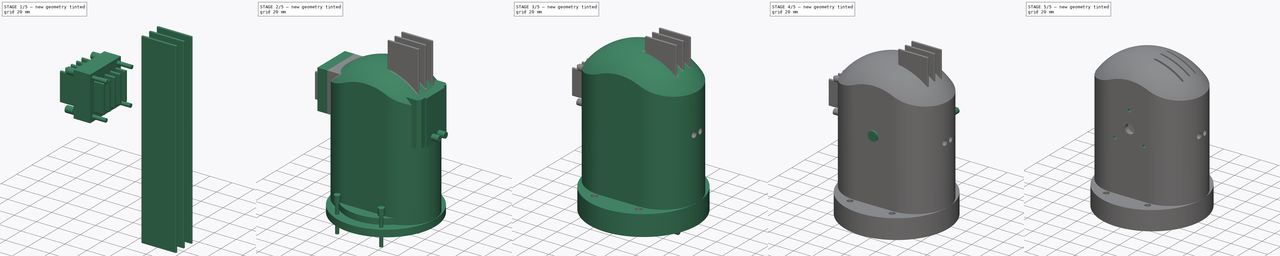
[diagram: build sequence overview — one tinted view per stage of 5, left to right]
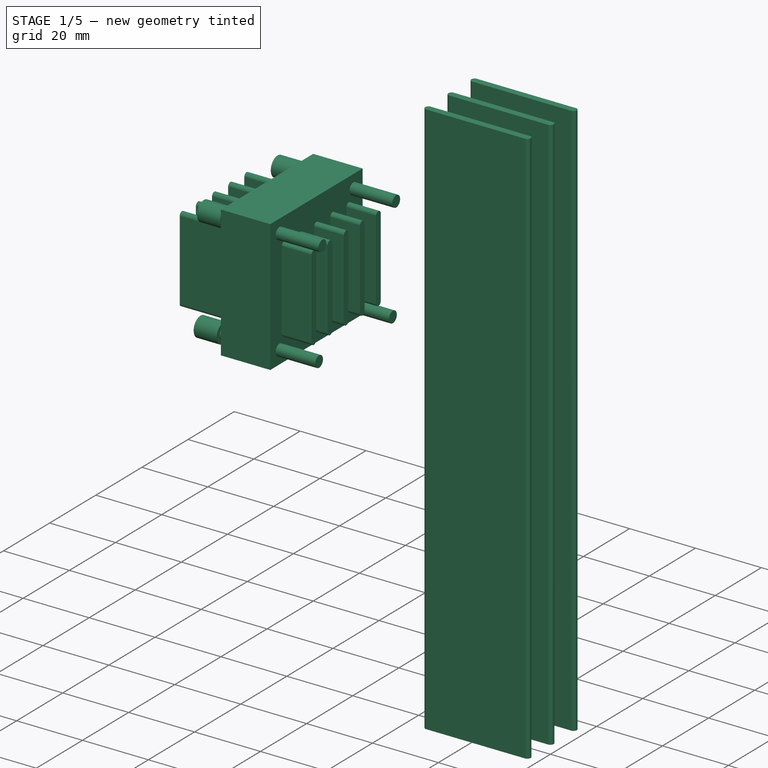
[diagram: stage 1 of 5 — iso view after this stage's code; geometry added in this stage tinted green]
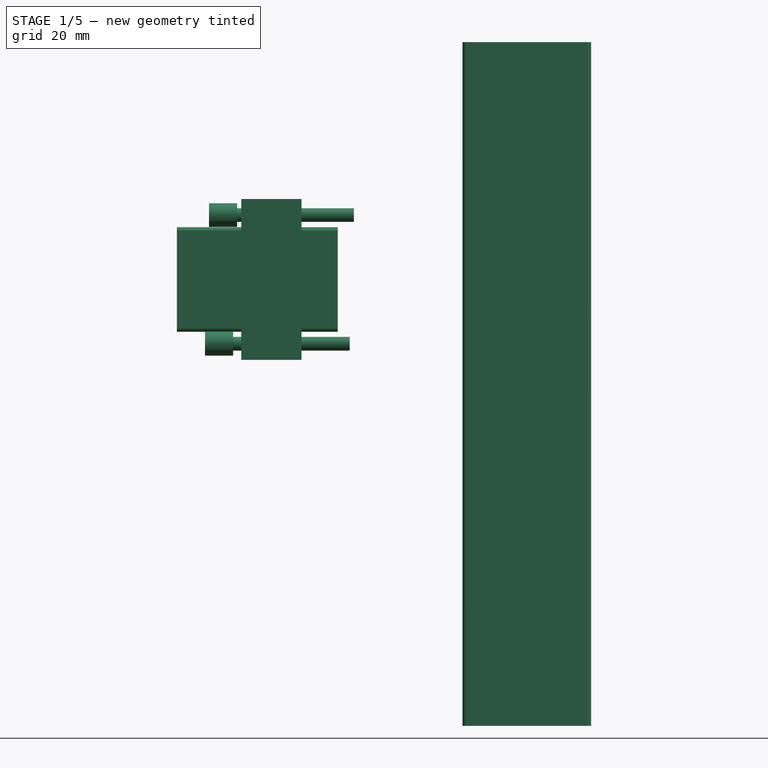
[diagram: stage 1 of 5 — front view after this stage's code; geometry added in this stage tinted green]
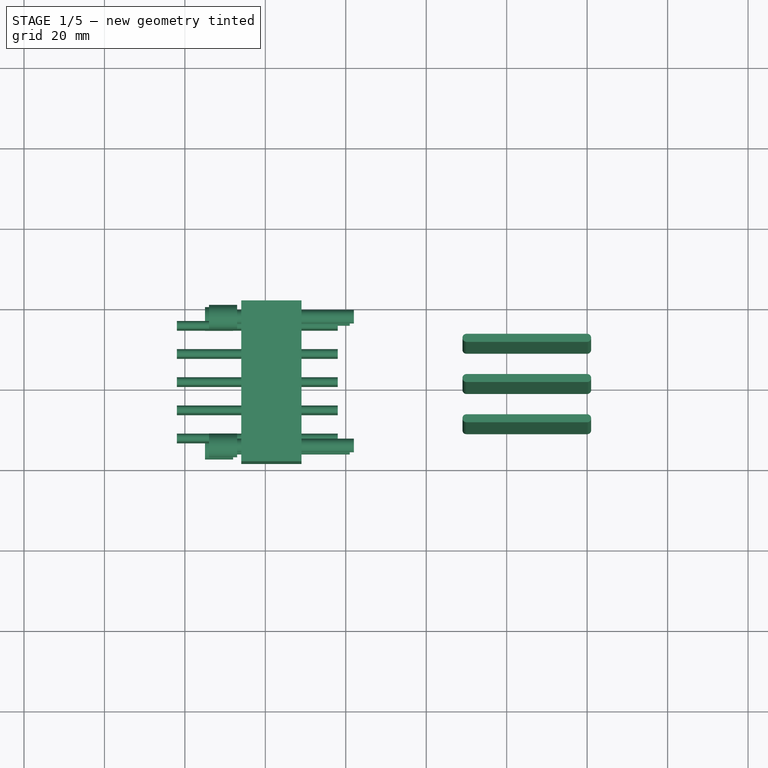
[diagram: stage 1 of 5 — top view after this stage's code; geometry added in this stage tinted green]
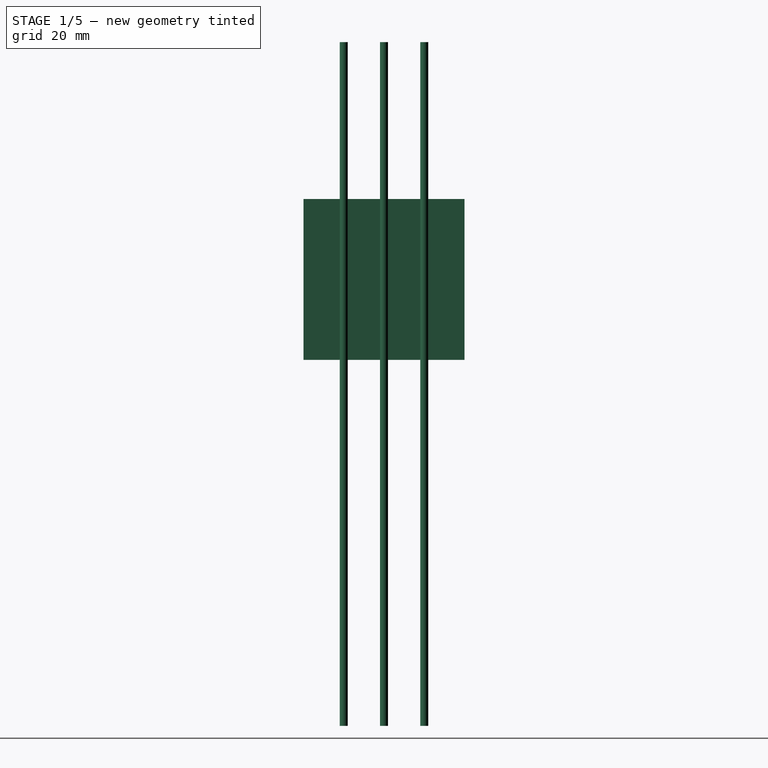
[diagram: stage 1 of 5 — right view after this stage's code; geometry added in this stage tinted green]
FCSTD DOCUMENT  (FreeCAD 0.16R6703 (Git))
Label: Art3Body
License: All rights reserved
LicenseURL: http://en.wikipedia.org/wiki/All_rights_reserved
objects: Part::FeaturePython×42, Part::MultiFuse×16, Sketcher::SketchObject×14, PartDesign::Pad×11, Part::Cylinder×9, Part::Cut×9, Part::Box×4, PartDesign::Revolution×3, Part::Prism×1, App::DocumentObjectGroup×1
note: 123 computed .brp shape members not serialized (recipe doc carries the construction recipe); baked Part::Feature solids carry a one-line shape summary decoded from their .brp

FEATURE [Part::Cylinder] Cylinder  label="M3BoltHead"
  Angle = 360
  Height = 7
  Radius = 2.95
FEATURE [Part::Cylinder] Cylinder001  label="M3BoltBody"
  Angle = 360
  Height = 30
  Placement = pos=(0,0,6) rot=(0,0,1;0rad)
  Radius = 1.7
FEATURE [Part::MultiFuse] Fusion  label="M3Bolt"
  Shapes = -> [Cylinder001,Cylinder]
FEATURE [Sketcher::SketchObject] Sketch
  Placement = pos=(10,0,80) rot=(0.707107,0.707107,0;3.14159rad)
  sketch-geometry (4):
    g0: ArcOfCircle CenterX=0 CenterY=30 CenterZ=0 NormalX=0 NormalY=0 NormalZ=1 Radius=1 StartAngle=0 EndAngle=3.14159
    g1: ArcOfCircle CenterX=0 CenterY=0 CenterZ=0 NormalX=0 NormalY=0 NormalZ=1 Radius=1 StartAngle=3.14159 EndAngle=6.28319
    g2: LineSegment StartX=-1 StartY=30 StartZ=0 EndX=-1 EndY=0 EndZ=0
    g3: LineSegment StartX=1 StartY=30 StartZ=0 EndX=1 EndY=0 EndZ=0
  constraints (9):
    c: Tangent(g0,g3) = 1.5708
    c: Tangent(g0,g2) = -1.5708
    c: Tangent(g2,g1) = -1.5708
    c: Tangent(g3,g1) = 1.5708
    c: Vertical(g2)
    c: Equal(g0,g1)
    c: DistanceY(g2,g2) = 30
    c: Radius(g0) = 1
    c: Coincident(g1,g-1)
FEATURE [PartDesign::Pad] Pad
  Length = 170
  Length2 = 100
  Midplane = true
  Placement = pos=(10,0,80) rot=(0.707107,0.707107,0;3.14159rad)
  Sketch = -> Sketch
  Type = 0
FEATURE [Part::FeaturePython] Clone  label="Clone of Pad"  # Draft clone (typed FeaturePython)
  Objects = -> [Pad]
  Placement = pos=(10,10,80) rot=(0.707107,0.707107,0;3.14159rad)
  Scale = (1,1,1)
FEATURE [Part::FeaturePython] Clone435  label="Clone of Pad001"  # Draft clone (typed FeaturePython)
  Objects = -> [Pad]
  Placement = pos=(10,-10,80) rot=(0.707107,0.707107,0;3.14159rad)
  Scale = (1,1,1)
FEATURE [Part::MultiFuse] Fusion167
  Shapes = -> [Pad,Clone435,Clone]
FEATURE [Part::Box] Box  label="Cube"
  Height = 40
  Length = 15
  Placement = pos=(-46,-20,86) rot=(0,0,1;0rad)
  Width = 40
FEATURE [Sketcher::SketchObject] Sketch082
  Placement = pos=(-42,0,118) rot=(0.57735,0.57735,-0.57735;4.18879rad)
  sketch-geometry (4):
    g0: ArcOfCircle CenterX=-9e-12 CenterY=24 CenterZ=0 NormalX=0 NormalY=0 NormalZ=1 Radius=1 StartAngle=0 EndAngle=3.14159
    g1: ArcOfCircle CenterX=0 CenterY=0 CenterZ=0 NormalX=0 NormalY=0 NormalZ=1 Radius=1 StartAngle=3.14159 EndAngle=6.28319
    g2: LineSegment StartX=-1 StartY=24 StartZ=0 EndX=-1 EndY=0 EndZ=0
    g3: LineSegment StartX=1 StartY=24 StartZ=0 EndX=1 EndY=0 EndZ=0
  constraints (9):
    c: Tangent(g0,g3) = 1.5708
    c: Tangent(g0,g2) = -1.5708
    c: Tangent(g2,g1) = -1.5708
    c: Tangent(g3,g1) = 1.5708
    c: Vertical(g2)
    c: Equal(g0,g1)
    c: DistanceY(g2,g2) = 24
    c: Radius(g0) = 1
    c: Coincident(g1,g-1)
FEATURE [PartDesign::Pad] Pad050
  Length = 40
  Length2 = 100
  Midplane = true
  Placement = pos=(-42,0,118) rot=(0.57735,0.57735,-0.57735;4.18879rad)
  Sketch = -> Sketch082
  Type = 0
FEATURE [Part::FeaturePython] Clone436  label="Clone of Pad050"  # Draft clone (typed FeaturePython)
  Objects = -> [Pad050]
  Placement = pos=(-42,7,118) rot=(0.57735,0.57735,-0.57735;4.18879rad)
  Scale = (1,1,1)
FEATURE [Part::FeaturePython] Clone437  label="Clone of Pad051"  # Draft clone (typed FeaturePython)
  Objects = -> [Pad050]
  Placement = pos=(-42,-7,118) rot=(0.57735,0.57735,-0.57735;4.18879rad)
  Scale = (1,1,1)
FEATURE [Part::FeaturePython] Clone438  label="Clone of Pad052"  # Draft clone (typed FeaturePython)
  Objects = -> [Pad050]
  Placement = pos=(-42,14,118) rot=(0.57735,0.57735,-0.57735;4.18879rad)
  Scale = (1,1,1)
FEATURE [Part::FeaturePython] Clone439  label="Clone of Pad053"  # Draft clone (typed FeaturePython)
  Objects = -> [Pad050]
  Placement = pos=(-42,-14,118) rot=(0.57735,0.57735,-0.57735;4.18879rad)
  Scale = (1,1,1)
FEATURE [Part::FeaturePython] Clone440  label="Clone of M3Bolt"  # Draft clone (typed FeaturePython)
  Objects = -> [Fusion]
  Placement = pos=(-55,-16,90) rot=(0,1,0;1.5708rad)
  Scale = (1,1,1)
FEATURE [Part::FeaturePython] Clone441  label="Clone of M3Bolt120"  # Draft clone (typed FeaturePython)
  Objects = -> [Fusion]
  Placement = pos=(-54,-16,122) rot=(0,1,0;1.5708rad)
  Scale = (1,1,1)
FEATURE [Part::FeaturePython] Clone442  label="Clone of M3Bolt121"  # Draft clone (typed FeaturePython)
  Objects = -> [Fusion]
  Placement = pos=(-55,16,90) rot=(0,1,0;1.5708rad)
  Scale = (1,1,1)
FEATURE [Part::FeaturePython] Clone443  label="Clone of M3Bolt122"  # Draft clone (typed FeaturePython)
  Objects = -> [Fusion]
  Placement = pos=(-54,16,122) rot=(0,1,0;1.5708rad)
  Scale = (1,1,1)
FEATURE [Part::MultiFuse] Fusion172
  Shapes = -> [Box,Clone439,Clone440,Clone436,Clone442,Clone443,Clone437,Clone438,Clone441,Pad050]
FEATURE [Part::MultiFuse] Fusion173
  Shapes = -> [Fusion172,Fusion167]
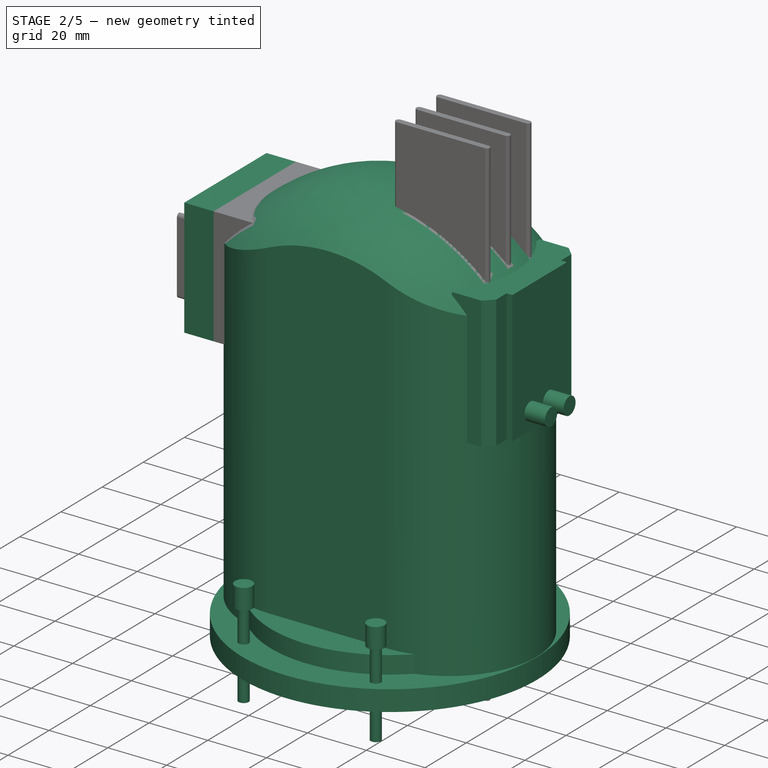
[diagram: stage 2 of 5 — iso view after this stage's code; geometry added in this stage tinted green]
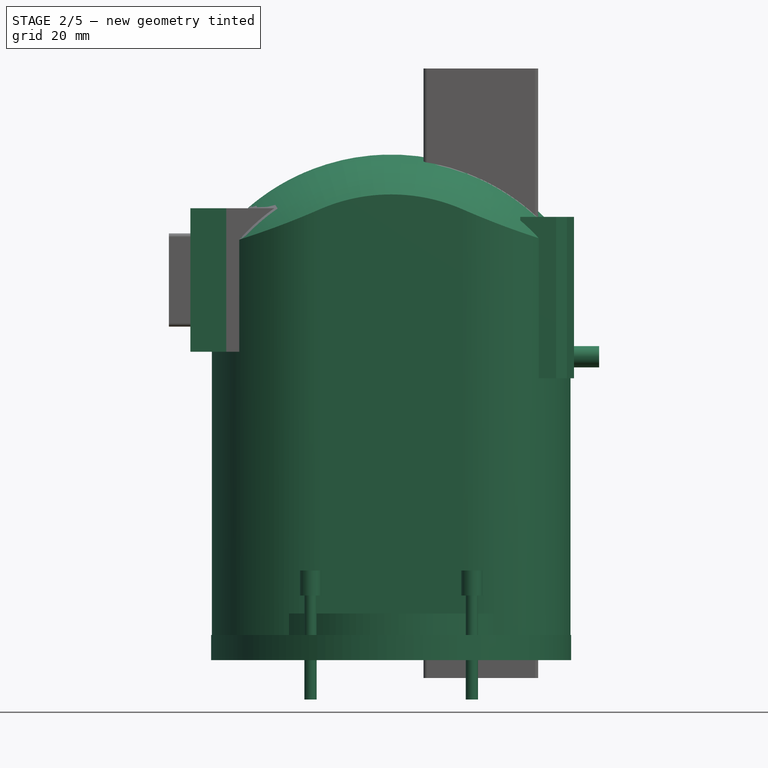
[diagram: stage 2 of 5 — front view after this stage's code; geometry added in this stage tinted green]
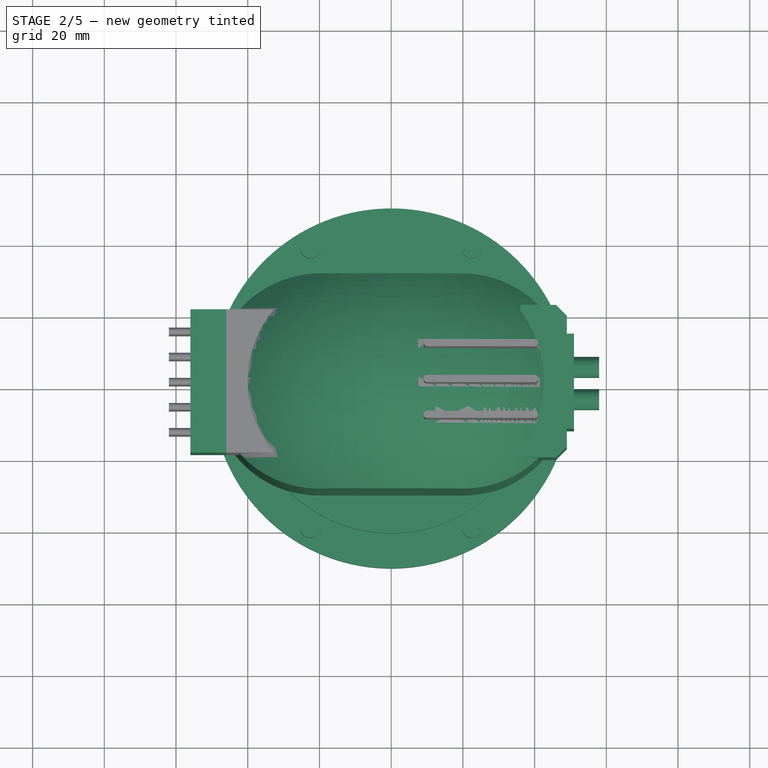
[diagram: stage 2 of 5 — top view after this stage's code; geometry added in this stage tinted green]
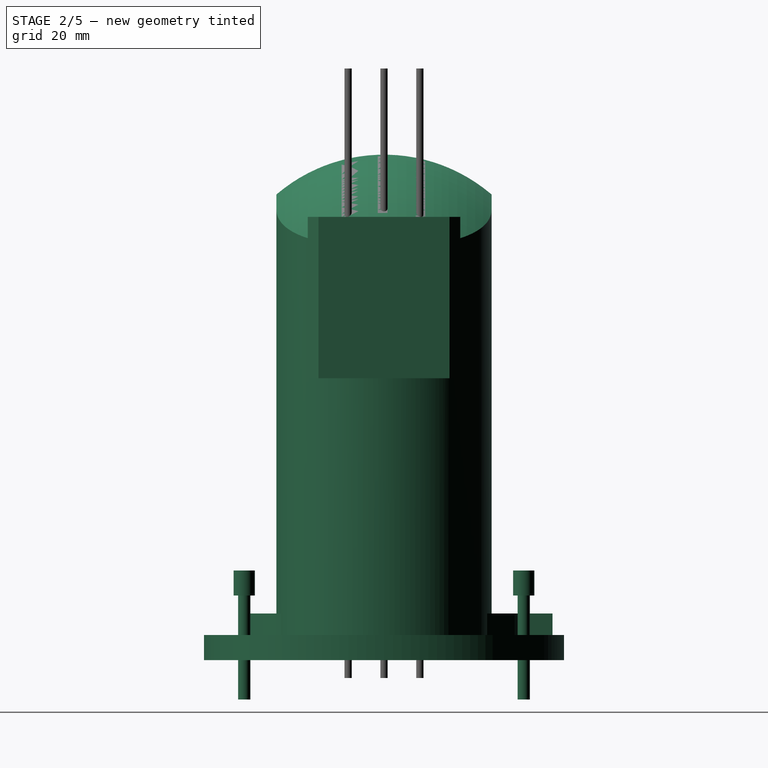
[diagram: stage 2 of 5 — right view after this stage's code; geometry added in this stage tinted green]
FEATURE [Part::Cylinder] Cylinder1017  label="Cylinder1065"
  Angle = 360
  Height = 7
  Radius = 50.2
FEATURE [Sketcher::SketchObject] Sketch038
  sketch-geometry (4):
    g0: ArcOfCircle CenterX=-20 CenterY=0 CenterZ=0 NormalX=0 NormalY=0 NormalZ=1 Radius=30 StartAngle=1.5708 EndAngle=4.71239
    g1: ArcOfCircle CenterX=20 CenterY=0 CenterZ=0 NormalX=0 NormalY=0 NormalZ=1 Radius=30 StartAngle=4.71239 EndAngle=7.85398
    g2: LineSegment StartX=-20 StartY=-30 StartZ=0 EndX=20 EndY=-30 EndZ=0
    g3: LineSegment StartX=-20 StartY=30 StartZ=0 EndX=20 EndY=30 EndZ=0
  constraints (10):
    c: Tangent(g0,g3) = 1.5708
    c: Tangent(g0,g2) = -1.5708
    c: Tangent(g2,g1) = -1.5708
    c: Tangent(g3,g1) = 1.5708
    c: Horizontal(g2)
    c: Equal(g0,g1)
    c: Radius(g0) = 30
    c: DistanceX(g2) = 40
    c: PointOnObject(g0,g-1)
    c: DistanceX(g-1,g0) = -20
FEATURE [Sketcher::SketchObject] Sketch039
  Placement = pos=(0,0,73) rot=(0,0,1;0rad)
  sketch-geometry (6):
    g0: ArcOfCircle CenterX=-15 CenterY=0 CenterZ=0 NormalX=0 NormalY=0 NormalZ=1 Radius=46 StartAngle=1.5708 EndAngle=4.71239
    g1: LineSegment StartX=-15.0001 StartY=46 StartZ=0 EndX=-15.0001 EndY=51 EndZ=0
    g2: LineSegment StartX=-15.0001 StartY=51 StartZ=0 EndX=-115 EndY=51 EndZ=0
    g3: LineSegment StartX=-115 StartY=51 StartZ=0 EndX=-115 EndY=-51 EndZ=0
    g4: LineSegment StartX=-115 StartY=-51 StartZ=0 EndX=-15.0001 EndY=-51 EndZ=0
    g5: LineSegment StartX=-15.0001 StartY=-51 StartZ=0 EndX=-15.0001 EndY=-46 EndZ=0
  constraints (19):
    c: PointOnObject(g0,g-1)
    c: Radius(g0) = 46
    c: Coincident(g1,g0)
    c: Vertical(g1)
    c: Coincident(g1,g2)
    c: Horizontal(g2)
    c: Coincident(g2,g3)
    c: Vertical(g3)
    c: Coincident(g3,g4)
    c: Horizontal(g4)
    c: Coincident(g4,g5)
    c: Coincident(g0,g5)
    c: DistanceX(g-1,g0) = -15
    c: DistanceY(g0,g0) = -92
    c: Vertical(g5)
    c: Equal(g5,g1)
    c: Equal(g2,g4)
    c: DistanceY(g1) = 5
    c: DistanceX(g4) = 100
FEATURE [PartDesign::Revolution] Revolution006
  Angle = 180
  Axis = (0,1,0)
  Base = (0,0,73)
  Placement = pos=(0,0,73) rot=(0,0,1;0rad)
  ReferenceAxis = -> Sketch039 [V_Axis]
  Sketch = -> Sketch039
FEATURE [PartDesign::Pad] Pad028
  Length = 139
  Length2 = 100
  Sketch = -> Sketch038
  Type = 0
FEATURE [Part::FeaturePython] Clone213  label="Clone of M3Bolt069"  # Draft clone (typed FeaturePython)
  Objects = -> [Fusion]
  Placement = pos=(-22.5,38.9711,25) rot=(-0.258819,0.965926,0;3.14159rad)
  Scale = (1,1,1)
FEATURE [Sketcher::SketchObject] Sketch040
  Placement = pos=(0,0,7) rot=(0,0,1;0rad)
  sketch-geometry (4):
    g0: ArcOfCircle CenterX=0 CenterY=0 CenterZ=0 NormalX=0 NormalY=0 NormalZ=1 Radius=40.5 StartAngle=1.69457 EndAngle=7.73021
    g1: LineSegment StartX=5 StartY=40.1902 StartZ=0 EndX=5 EndY=47 EndZ=0
    g2: LineSegment StartX=5 StartY=47 StartZ=0 EndX=-5 EndY=47 EndZ=0
    g3: LineSegment StartX=-5 StartY=47 StartZ=0 EndX=-5 EndY=40.1902 EndZ=0
  constraints (12):
    c: Coincident(g0,g-1)
    c: Coincident(g1,g2)
    c: Coincident(g2,g3)
    c: Horizontal(g2)
    c: Vertical(g1)
    c: Vertical(g3)
    c: Radius(g0) = 40.5
    c: DistanceY(g-1,g1) = 47
    c: DistanceX(g2) = -10
    c: DistanceX(g-1,g2) = -5
    c: Coincident(g0,g3)
    c: Coincident(g1,g0)
FEATURE [PartDesign::Pad] Pad029
  Length = 6
  Length2 = 100
  Placement = pos=(0,0,7) rot=(0,0,1;0rad)
  Sketch = -> Sketch040
  Type = 0
FEATURE [Part::FeaturePython] Clone214  label="Clone of M3Bolt070"  # Draft clone (typed FeaturePython)
  Objects = -> [Fusion]
  Placement = pos=(22.5,-38.9711,25) rot=(1,0,0;3.14159rad)
  Scale = (1,1,1)
FEATURE [Part::FeaturePython] Clone215  label="Clone of M3Bolt071"  # Draft clone (typed FeaturePython)
  Objects = -> [Fusion]
  Placement = pos=(22.5,38.9711,25) rot=(0.5,0.866025,0;3.14159rad)
  Scale = (1,1,1)
FEATURE [Part::FeaturePython] Clone216  label="Clone of M3Bolt072"  # Draft clone (typed FeaturePython)
  Objects = -> [Fusion]
  Placement = pos=(-22.5,-38.9711,25) rot=(0.866025,-0.5,0;3.14159rad)
  Scale = (1,1,1)
FEATURE [Sketcher::SketchObject] Sketch041
  Placement = pos=(46,-21.25,78.6) rot=(0,0,1;0rad)
  sketch-geometry (6):
    g0: LineSegment StartX=0 StartY=0 StartZ=0 EndX=3 EndY=3 EndZ=0
    g1: LineSegment StartX=3 StartY=3 StartZ=0 EndX=3 EndY=39.5 EndZ=0
    g2: LineSegment StartX=3 StartY=39.5 StartZ=0 EndX=0 EndY=42.5 EndZ=0
    g3: LineSegment StartX=0 StartY=42.5 StartZ=0 EndX=-10 EndY=42.5 EndZ=0
    g4: LineSegment StartX=-10 StartY=42.5 StartZ=0 EndX=-10 EndY=0 EndZ=0
    g5: LineSegment StartX=-10 StartY=0 StartZ=0 EndX=0 EndY=0 EndZ=0
  constraints (17):
    c: Coincident(g-1,g0)
    c: Coincident(g0,g1)
    c: Vertical(g1)
    c: Coincident(g1,g2)
    c: PointOnObject(g2,g-2)
    c: Coincident(g2,g3)
    c: Horizontal(g3)
    c: Coincident(g3,g4)
    c: PointOnObject(g4,g-1)
    c: Vertical(g4)
    c: Coincident(g4,g5)
    c: Coincident(g5,g0)
    c: Angle(g-1,g0) = 0.785398
    c: Angle(g2,g-1) = 0.785398
    c: DistanceY(g1) = 36.5
    c: DistanceX(g-1,g0) = 3
    c: DistanceX(g5) = 10
FEATURE [PartDesign::Pad] Pad030
  Length = 45
  Length2 = 100
  Placement = pos=(46,-21.25,78.6) rot=(0,0,1;0rad)
  Sketch = -> Sketch041
  Type = 0
FEATURE [Part::FeaturePython] Clone217  label="Clone of M3Bolt073"  # Draft clone (typed FeaturePython)
  Objects = -> [Fusion]
  Placement = pos=(58,4.5,84.6) rot=(0,-1,0;1.5708rad)
  Scale = (1,1,1)
FEATURE [Part::FeaturePython] Clone218  label="Clone of M3Bolt074"  # Draft clone (typed FeaturePython)
  Objects = -> [Fusion]
  Placement = pos=(58,-4.5,84.6) rot=(0,-1,0;1.5708rad)
  Scale = (1,1,1)
FEATURE [Part::Box] Box252  label="Cube016"
  Height = 45
  Length = 3
  Placement = pos=(48,-13.25,78.6) rot=(0,0,1;0rad)
  Width = 26.5
FEATURE [Part::Cut] Cut062
  Base = -> Pad028
  Placement = pos=(0,0,7) rot=(0,0,1;0rad)
  Tool = -> Revolution006
FEATURE [Part::MultiFuse] Fusion078
  Shapes = -> [Cylinder1017,Pad029,Cut062]
FEATURE [Part::MultiFuse] Fusion080
  Shapes = -> [Clone218,Clone217,Pad030]
FEATURE [App::DocumentObjectGroup] Group  label="Master"
  Group = -> [Fusion,Pad002,Prism,Cylinder1003,Cut020,Pad026,Fusion158,Pad048]
FEATURE [Part::MultiFuse] Fusion163
  Shapes = -> [Clone216,Clone213,Clone214,Clone215]
FEATURE [Part::Box] Box253  label="Cube017"
  Height = 40
  Length = 10
  Placement = pos=(-56,-20,86) rot=(0,0,1;0rad)
  Width = 40
FEATURE [Part::MultiFuse] Fusion168
  Shapes = -> [Box252,Box253]
FEATURE [Part::MultiFuse] Fusion169
  Shapes = -> [Fusion163,Fusion080]
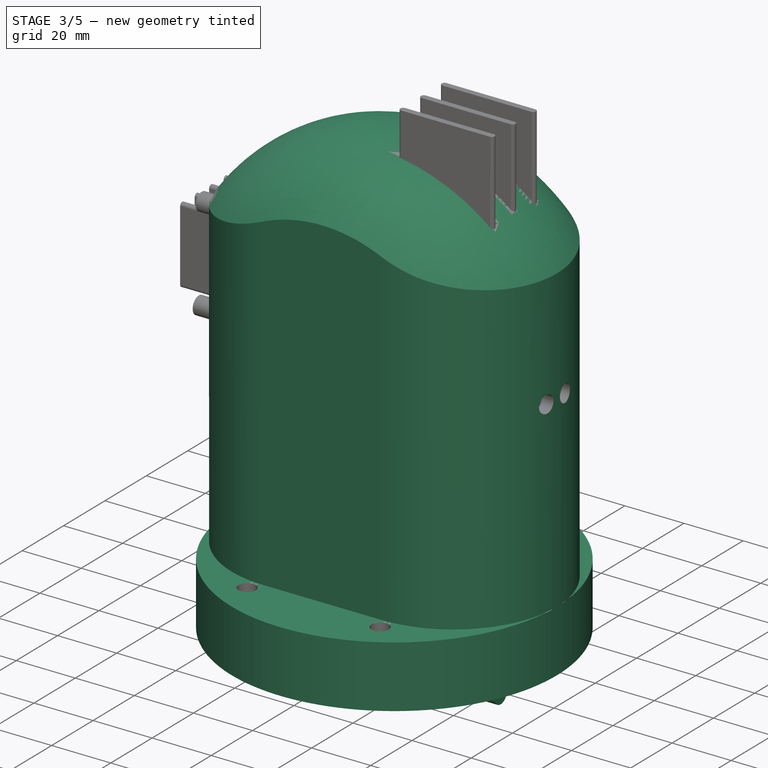
[diagram: stage 3 of 5 — iso view after this stage's code; geometry added in this stage tinted green]
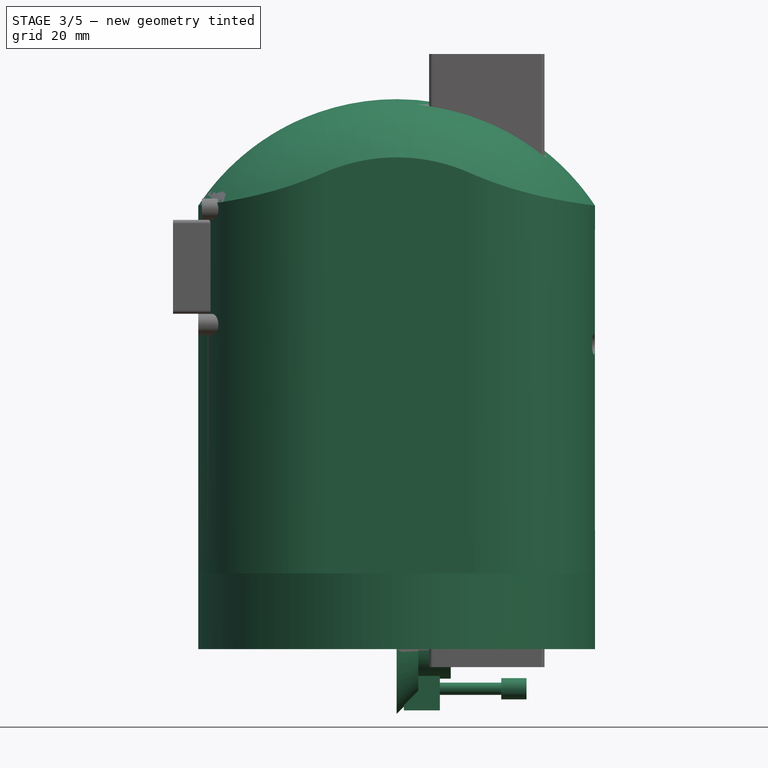
[diagram: stage 3 of 5 — front view after this stage's code; geometry added in this stage tinted green]
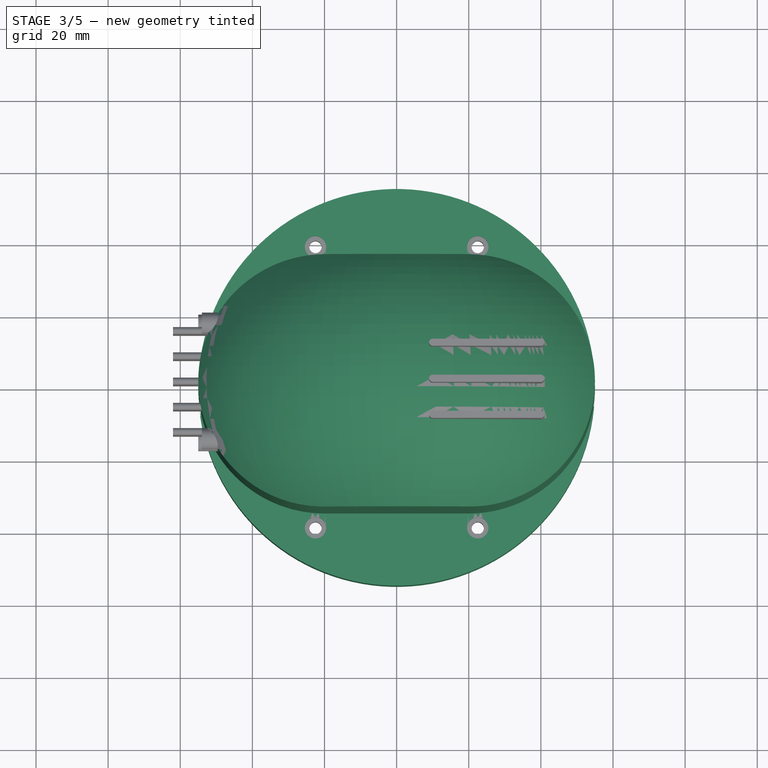
[diagram: stage 3 of 5 — top view after this stage's code; geometry added in this stage tinted green]
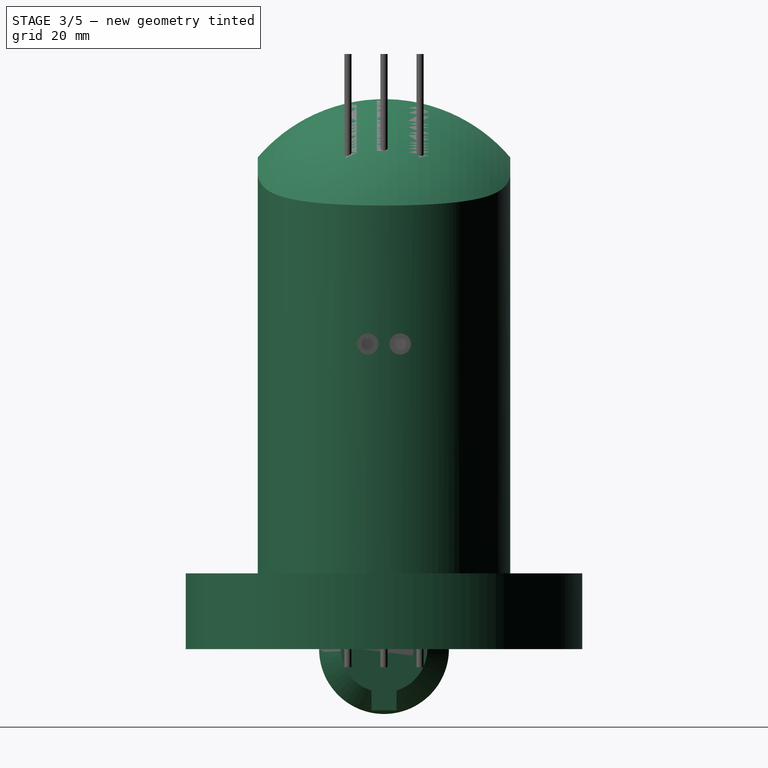
[diagram: stage 3 of 5 — right view after this stage's code; geometry added in this stage tinted green]
FEATURE [Sketcher::SketchObject] Sketch016
  sketch-geometry (4):
    g0: LineSegment StartX=0 StartY=0 StartZ=0 EndX=0 EndY=18 EndZ=0
    g1: LineSegment StartX=0 StartY=18 StartZ=0 EndX=6 EndY=12 EndZ=0
    g2: LineSegment StartX=6 StartY=12 StartZ=0 EndX=6 EndY=0 EndZ=0
    g3: LineSegment StartX=0 StartY=0 StartZ=0 EndX=6 EndY=0 EndZ=0
  constraints (11):
    c: Coincident(g0,g-1)
    c: Vertical(g0)
    c: Coincident(g1,g0)
    c: Coincident(g2,g1)
    c: PointOnObject(g2,g-1)
    c: Vertical(g2)
    c: Coincident(g3,g-1)
    c: Coincident(g3,g2)
    c: DistanceY(g2) = -12
    c: DistanceX(g3) = 6
    c: Angle(g1,g-1) = 0.785398
FEATURE [PartDesign::Revolution] Revolution003  label="625ZZBearingHousingNoHoles"
  Angle = 360
  Axis = (1,0,0)
  Base = (0,0,0)
  ReferenceAxis = -> Sketch016 [H_Axis]
  Sketch = -> Sketch016
FEATURE [Part::Cylinder] Cylinder1003  label="Bearing625ZZMaster"
  Angle = 360
  Height = 15
  Radius = 8.2
FEATURE [Part::Box] Box246  label="Cube010"
  Height = 34
  Length = 10
  Placement = pos=(2,-3.45,-17) rot=(0,0,1;0rad)
  Width = 6.9
FEATURE [Part::FeaturePython] Clone058  label="Clone of Bearing625ZZMaster001"  # Draft clone (typed FeaturePython)
  Objects = -> [Cylinder1003]
  Placement = pos=(0,0,0) rot=(0,1,0;1.5708rad)
  Scale = (1,1,1)
FEATURE [Part::FeaturePython] Clone061  label="Clone of M3Bolt021"  # Draft clone (typed FeaturePython)
  Objects = -> [Fusion]
  Placement = pos=(36,0,11) rot=(0,-1,0;1.5708rad)
  Scale = (1,1,1)
FEATURE [Part::FeaturePython] Clone062  label="Clone of M3Bolt022"  # Draft clone (typed FeaturePython)
  Objects = -> [Fusion]
  Placement = pos=(36,0,-11) rot=(0,-1,0;1.5708rad)
  Scale = (1,1,1)
FEATURE [Part::MultiFuse] Fusion021
  Shapes = -> [Clone058,Clone062,Clone061,Box246]
FEATURE [Part::Cylinder] Cylinder1016  label="Cylinder1018"
  Angle = 360
  Height = 21
  Radius = 55
FEATURE [Sketcher::SketchObject] Sketch034
  sketch-geometry (4):
    g0: ArcOfCircle CenterX=-20 CenterY=0 CenterZ=0 NormalX=0 NormalY=0 NormalZ=1 Radius=35 StartAngle=1.5708 EndAngle=4.71239
    g1: ArcOfCircle CenterX=20 CenterY=-1e-12 CenterZ=0 NormalX=0 NormalY=0 NormalZ=1 Radius=35 StartAngle=4.71239 EndAngle=7.85398
    g2: LineSegment StartX=-20 StartY=-35 StartZ=0 EndX=20 EndY=-35 EndZ=0
    g3: LineSegment StartX=-20 StartY=35 StartZ=0 EndX=20 EndY=35 EndZ=0
  constraints (10):
    c: Tangent(g0,g3) = 1.5708
    c: Tangent(g0,g2) = -1.5708
    c: Tangent(g2,g1) = -1.5708
    c: Tangent(g3,g1) = 1.5708
    c: Horizontal(g2)
    c: Equal(g0,g1)
    c: Radius(g0) = 35
    c: DistanceX(g2) = 40
    c: PointOnObject(g0,g-1)
    c: DistanceX(g-1,g0) = -20
FEATURE [Sketcher::SketchObject] Sketch035
  Placement = pos=(0,0,65.5) rot=(0,0,1;0rad)
  sketch-geometry (6):
    g0: ArcOfCircle CenterX=-20 CenterY=0 CenterZ=0 NormalX=0 NormalY=0 NormalZ=1 Radius=46 StartAngle=1.5708 EndAngle=4.71239
    g1: LineSegment StartX=-20 StartY=46 StartZ=0 EndX=-20 EndY=51 EndZ=0
    g2: LineSegment StartX=-20 StartY=51 StartZ=0 EndX=-120 EndY=51 EndZ=0
    g3: LineSegment StartX=-120 StartY=51 StartZ=0 EndX=-120 EndY=-51 EndZ=0
    g4: LineSegment StartX=-120 StartY=-51 StartZ=0 EndX=-20 EndY=-51 EndZ=0
    g5: LineSegment StartX=-20 StartY=-51 StartZ=0 EndX=-20 EndY=-46 EndZ=0
  constraints (19):
    c: PointOnObject(g0,g-1)
    c: Radius(g0) = 46
    c: Coincident(g1,g0)
    c: Vertical(g1)
    c: Coincident(g1,g2)
    c: Horizontal(g2)
    c: Coincident(g2,g3)
    c: Vertical(g3)
    c: Coincident(g3,g4)
    c: Horizontal(g4)
    c: Coincident(g4,g5)
    c: Coincident(g0,g5)
    c: DistanceX(g-1,g0) = -20
    c: DistanceY(g0,g0) = -92
    c: Vertical(g5)
    c: Equal(g5,g1)
    c: Equal(g2,g4)
    c: DistanceY(g1) = 5
    c: DistanceX(g4) = 100
FEATURE [PartDesign::Revolution] Revolution005
  Angle = 180
  Axis = (0,1,0)
  Base = (0,0,65.5)
  Placement = pos=(0,0,65.5) rot=(0,0,1;0rad)
  ReferenceAxis = -> Sketch035 [V_Axis]
  Sketch = -> Sketch035
FEATURE [PartDesign::Pad] Pad025
  Length = 131.5
  Length2 = 100
  Sketch = -> Sketch034
  Type = 0
FEATURE [Part::Cut] Cut061  label="Cut153"
  Base = -> Pad025
  Placement = pos=(0,0,21) rot=(0,0,1;0rad)
  Tool = -> Revolution005
FEATURE [Sketcher::SketchObject] Sketch036
  Placement = pos=(0,0,0) rot=(0.57735,0.57735,0.57735;2.0944rad)
  sketch-geometry (4):
    g0: LineSegment StartX=0 StartY=0 StartZ=0 EndX=0 EndY=14 EndZ=0
    g1: LineSegment StartX=0 StartY=14 StartZ=0 EndX=5 EndY=14 EndZ=0
    g2: LineSegment StartX=5 StartY=14 StartZ=0 EndX=5 EndY=5 EndZ=0
    g3: LineSegment StartX=5 StartY=5 StartZ=0 EndX=0 EndY=0 EndZ=0
  constraints (11):
    c: Coincident(g-1,g0)
    c: Vertical(g0)
    c: Coincident(g0,g1)
    c: Horizontal(g1)
    c: Coincident(g1,g2)
    c: Vertical(g2)
    c: Coincident(g2,g3)
    c: Coincident(g3,g-1)
    c: Angle(g-1,g3) = 0.785398
    c: DistanceY(g0) = 14
    c: DistanceX(g1) = 5
FEATURE [PartDesign::Pad] Pad026  label="NutHolder45DegreesMaster"
  Length = 10
  Length2 = 100
  Placement = pos=(0,0,0) rot=(0.57735,0.57735,0.57735;2.0944rad)
  Sketch = -> Sketch036
  Type = 0
FEATURE [Part::FeaturePython] Clone199  label="Clone of NutHolder45DegreesMaster"  # Draft clone (typed FeaturePython)
  Objects = -> [Pad026]
  Placement = pos=(-11,-30,83.5) rot=(0.57735,0.57735,-0.57735;4.18879rad)
  Scale = (1,1,1)
FEATURE [Part::FeaturePython] Clone200  label="Clone of NutHolder45DegreesMaster001"  # Draft clone (typed FeaturePython)
  Objects = -> [Pad026]
  Placement = pos=(21,-30,83.5) rot=(0.57735,0.57735,-0.57735;4.18879rad)
  Scale = (1,1,1)
FEATURE [Part::FeaturePython] Clone201  label="Clone of NutHolder45DegreesMaster002"  # Draft clone (typed FeaturePython)
  Objects = -> [Pad026]
  Placement = pos=(5,-30,114.5) rot=(0.57735,0.57735,-0.57735;4.18879rad)
  Scale = (1,1,1)
FEATURE [Part::MultiFuse] Fusion072
  Shapes = -> [Cut061,Cylinder1016]
FEATURE [Part::Cut] Cut
  Base = -> Fusion078
  Tool = -> Fusion168
FEATURE [Part::Cut] Cut143
  Base = -> Fusion072
  Tool = -> Cut
FEATURE [Part::Cut] Cut144
  Base = -> Cut143
  Tool = -> Fusion169
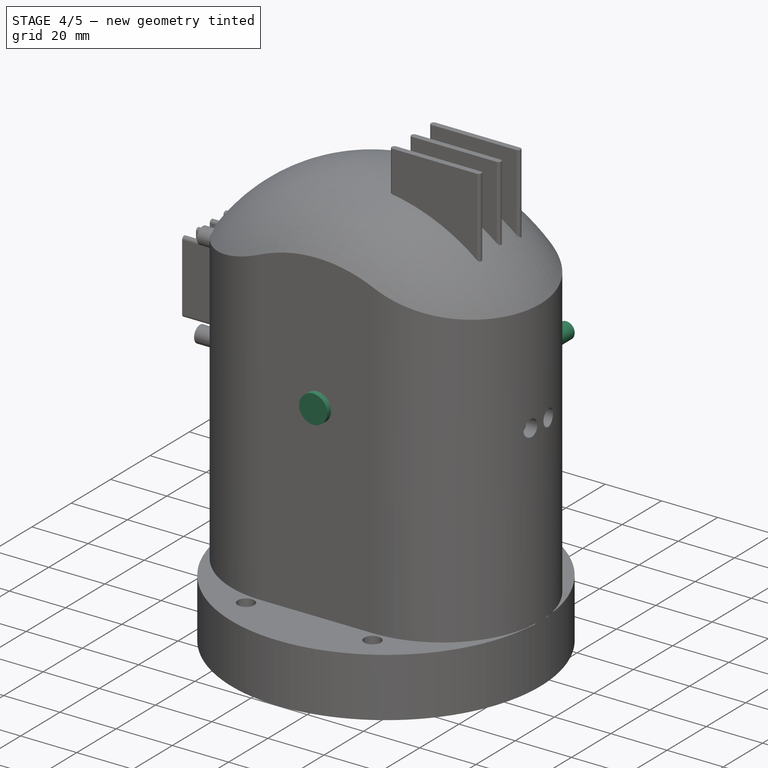
[diagram: stage 4 of 5 — iso view after this stage's code; geometry added in this stage tinted green]
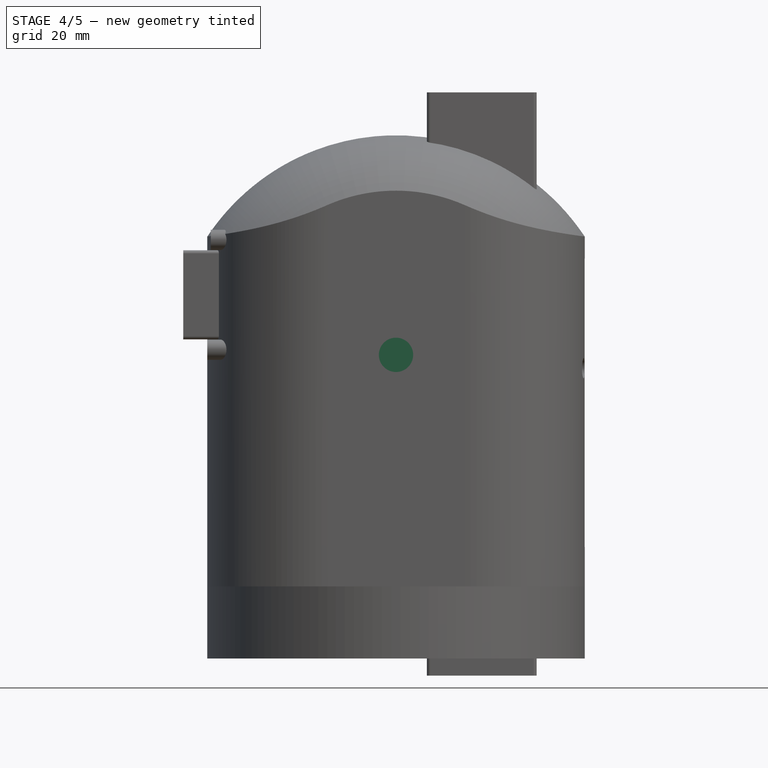
[diagram: stage 4 of 5 — front view after this stage's code; geometry added in this stage tinted green]
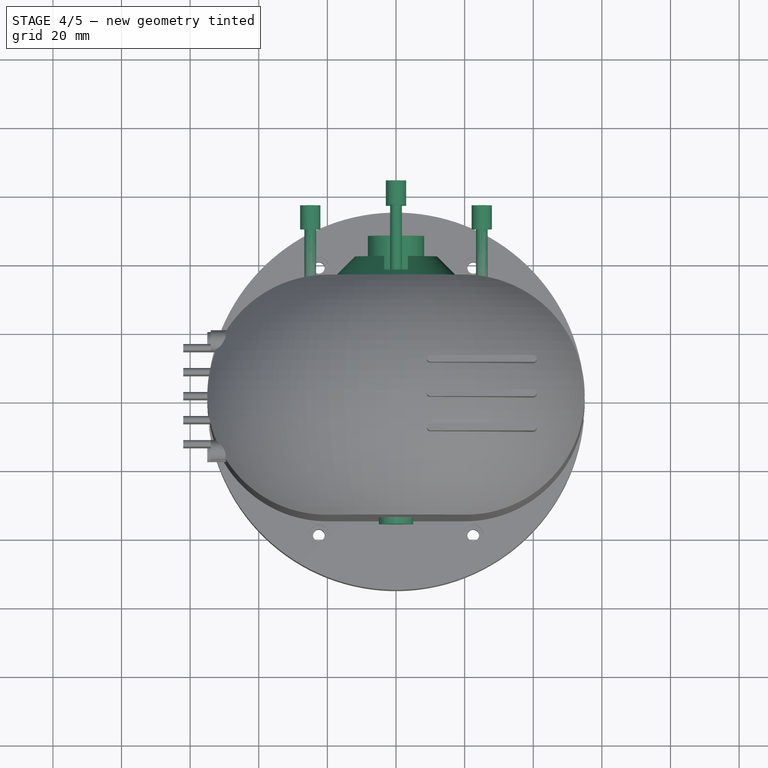
[diagram: stage 4 of 5 — top view after this stage's code; geometry added in this stage tinted green]
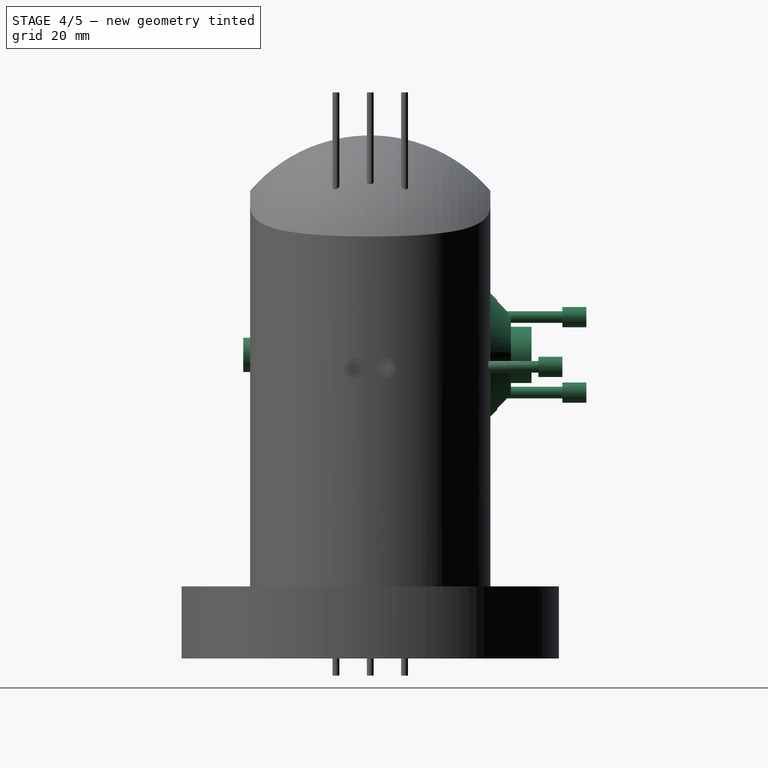
[diagram: stage 4 of 5 — right view after this stage's code; geometry added in this stage tinted green]
FEATURE [Sketcher::SketchObject] Sketch003  label="M3NutHousingSketch"
  sketch-geometry (5):
    g0: LineSegment StartX=0 StartY=0 StartZ=0 EndX=1.67432 EndY=2.9 EndZ=0
    g1: LineSegment StartX=1.67432 StartY=2.9 StartZ=0 EndX=21.6743 EndY=2.9 EndZ=0
    g2: LineSegment StartX=21.6743 StartY=2.9 StartZ=0 EndX=21.6743 EndY=-2.9 EndZ=0
    g3: LineSegment StartX=21.6743 StartY=-2.9 StartZ=0 EndX=1.67432 EndY=-2.9 EndZ=0
    g4: LineSegment StartX=1.67432 StartY=-2.9 StartZ=0 EndX=0 EndY=0 EndZ=0
  constraints (14):
    c: Coincident(g-1,g0)
    c: Coincident(g0,g1)
    c: Horizontal(g1)
    c: Coincident(g1,g2)
    c: Vertical(g2)
    c: Coincident(g2,g3)
    c: Horizontal(g3)
    c: Coincident(g3,g4)
    c: Coincident(g4,g0)
    c: Equal(g3,g1)
    c: Equal(g4,g0)
    c: DistanceY(g2) = -5.8
    c: Angle(g-1,g0) = 1.0472
    c: DistanceX(g3) = -20
FEATURE [PartDesign::Pad] Pad002  label="M3NutHousing"
  Length = 2.7
  Length2 = 100
  Sketch = -> Sketch003
  Type = 0
FEATURE [Part::Prism] Prism  label="M3Nut"
  Circumradius = 3.35
  Height = 12
  Polygon = 6
FEATURE [Part::Cut] Cut020  label="625zzBearingHousingMaster"
  Base = -> Revolution003
  Tool = -> Fusion021
FEATURE [Part::FeaturePython] Clone198  label="Clone of 625zzBearingHousingMaster"  # Draft clone (typed FeaturePython)
  Objects = -> [Cut020]
  Placement = pos=(0,35,88.5) rot=(0,0,1;1.5708rad)
  Scale = (1,1,1)
FEATURE [Part::FeaturePython] Clone205  label="Clone of M3NutHousing018"  # Draft clone (typed FeaturePython)
  Objects = -> [Pad002]
  Placement = pos=(-16,-30,79) rot=(0.57735,-0.57735,-0.57735;4.18879rad)
  Scale = (1,1,1)
FEATURE [Part::FeaturePython] Clone206  label="Clone of M3NutHousing019"  # Draft clone (typed FeaturePython)
  Objects = -> [Pad002]
  Placement = pos=(16,-30,79) rot=(0.57735,-0.57735,-0.57735;4.18879rad)
  Scale = (1,1,1)
FEATURE [Part::FeaturePython] Clone207  label="Clone of M3NutHousing020"  # Draft clone (typed FeaturePython)
  Objects = -> [Pad002]
  Placement = pos=(0,-30,110) rot=(0.57735,-0.57735,-0.57735;4.18879rad)
  Scale = (1,1,1)
FEATURE [Part::FeaturePython] Clone208  label="Clone of M3Nut007"  # Draft clone (typed FeaturePython)
  Objects = -> [Prism]
  Placement = pos=(0,22,77.5) rot=(-1,0,0;1.5708rad)
  Scale = (1,1,1)
FEATURE [Part::FeaturePython] Clone209  label="Clone of M3Nut008"  # Draft clone (typed FeaturePython)
  Objects = -> [Prism]
  Placement = pos=(0,22,99.5) rot=(-1,0,0;1.5708rad)
  Scale = (1,1,1)
FEATURE [Part::FeaturePython] Clone210  label="Clone of M3Bolt067"  # Draft clone (typed FeaturePython)
  Objects = -> [Fusion]
  Placement = pos=(0,63,77.5) rot=(0,0.707107,-0.707107;3.14159rad)
  Scale = (1,1,1)
FEATURE [Part::FeaturePython] Clone211  label="Clone of M3Bolt068"  # Draft clone (typed FeaturePython)
  Objects = -> [Fusion]
  Placement = pos=(0,63,99.5) rot=(0,0.707107,-0.707107;3.14159rad)
  Scale = (1,1,1)
FEATURE [Part::FeaturePython] Clone212  label="Clone of Bearing625ZZMaster003"  # Draft clone (typed FeaturePython)
  Objects = -> [Cylinder1003]
  Placement = pos=(0,32,88.5) rot=(-1,0,0;1.5708rad)
  Scale = (1,1,1)
FEATURE [Part::Cylinder] Cylinder1019  label="Cylinder1066"
  Angle = 360
  Height = 10
  Placement = pos=(0,32,88.5) rot=(1,0,0;1.5708rad)
  Radius = 5
FEATURE [Part::Cylinder] Cylinder1021  label="Cylinder1068"
  Angle = 360
  Height = 10
  Placement = pos=(0,-27,88.5) rot=(1,0,0;1.5708rad)
  Radius = 5
FEATURE [Part::FeaturePython] Clone353  label="Clone of M3Nut017"  # Draft clone (typed FeaturePython)
  Objects = -> [Prism]
  Placement = pos=(25,20,85) rot=(-1,0,0;1.5708rad)
  Scale = (1,1,1)
FEATURE [Part::FeaturePython] Clone354  label="Clone of M3Nut018"  # Draft clone (typed FeaturePython)
  Objects = -> [Prism]
  Placement = pos=(-25,20,85) rot=(-1,0,0;1.5708rad)
  Scale = (1,1,1)
FEATURE [Part::FeaturePython] Clone355  label="Clone of M3Bolt118"  # Draft clone (typed FeaturePython)
  Objects = -> [Fusion]
  Placement = pos=(25,56,85) rot=(0,0.707107,-0.707107;3.14159rad)
  Scale = (1,1,1)
FEATURE [Part::FeaturePython] Clone356  label="Clone of M3Bolt119"  # Draft clone (typed FeaturePython)
  Objects = -> [Fusion]
  Placement = pos=(-25,56,85) rot=(0,0.707107,-0.707107;3.14159rad)
  Scale = (1,1,1)
FEATURE [Part::MultiFuse] Fusion170
  Shapes = -> [Clone200,Clone199,Clone201,Clone198,Cut144]
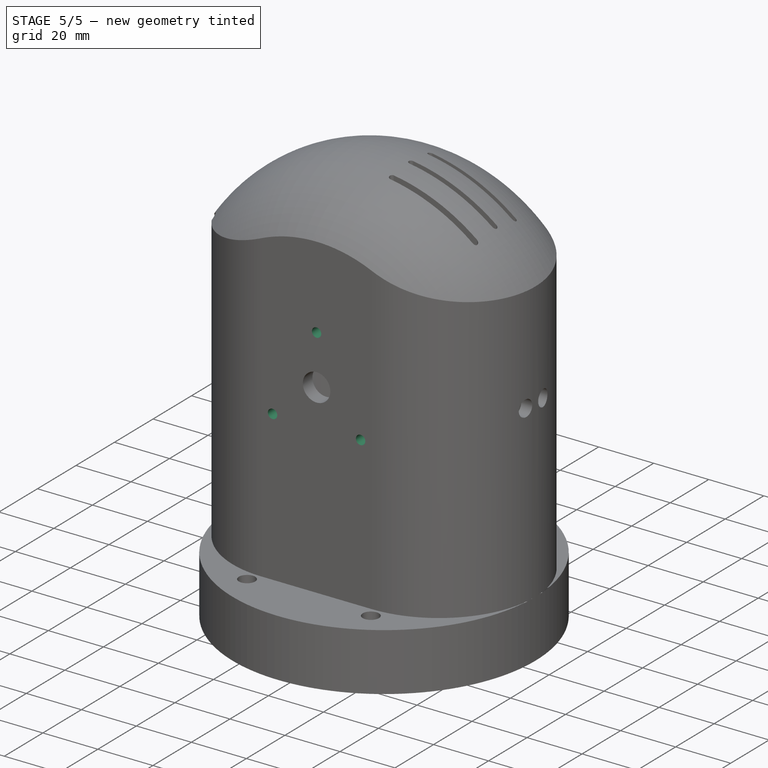
[diagram: stage 5 of 5 — iso view after this stage's code; geometry added in this stage tinted green]
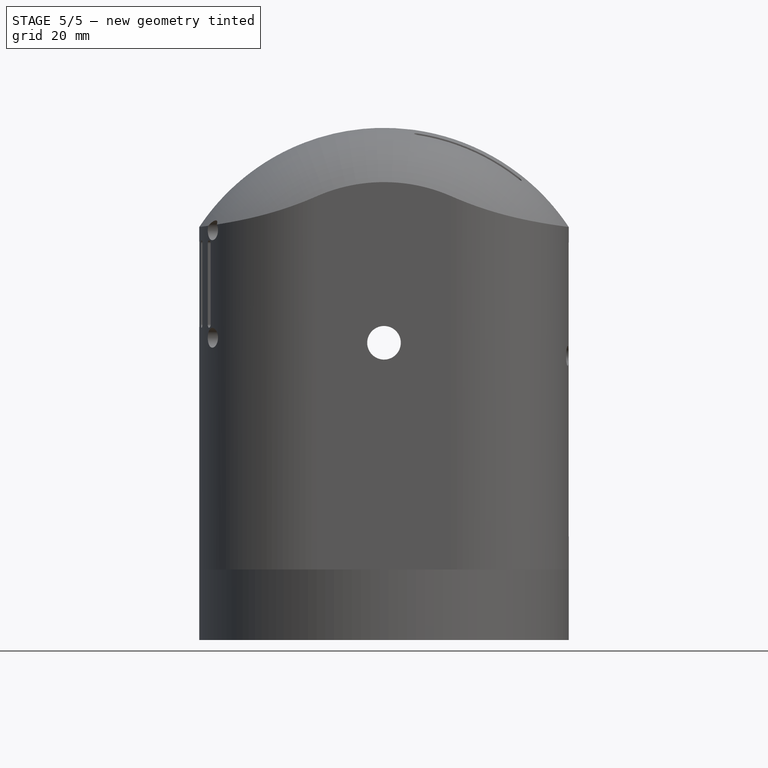
[diagram: stage 5 of 5 — front view after this stage's code; geometry added in this stage tinted green]
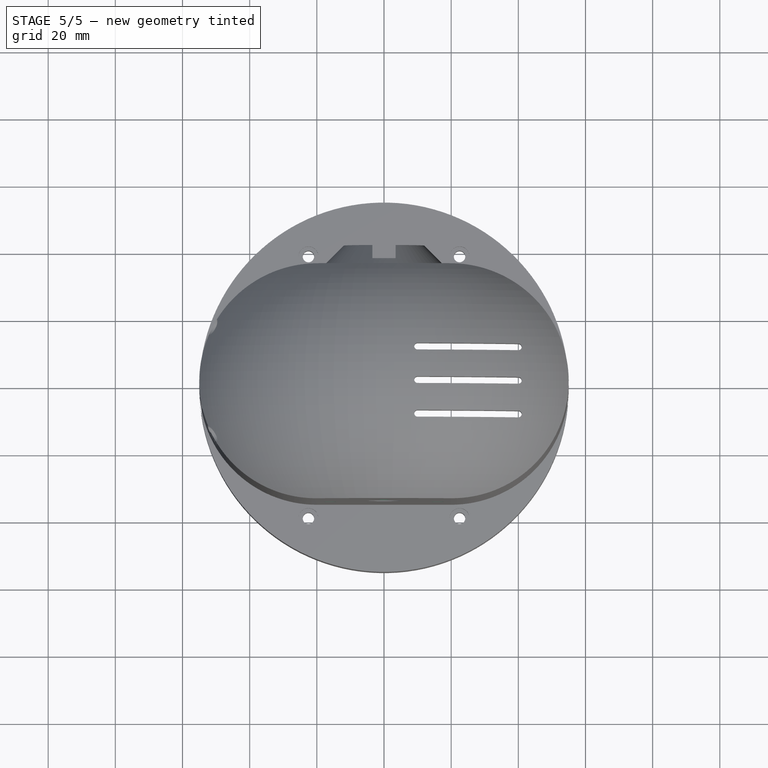
[diagram: stage 5 of 5 — top view after this stage's code; geometry added in this stage tinted green]
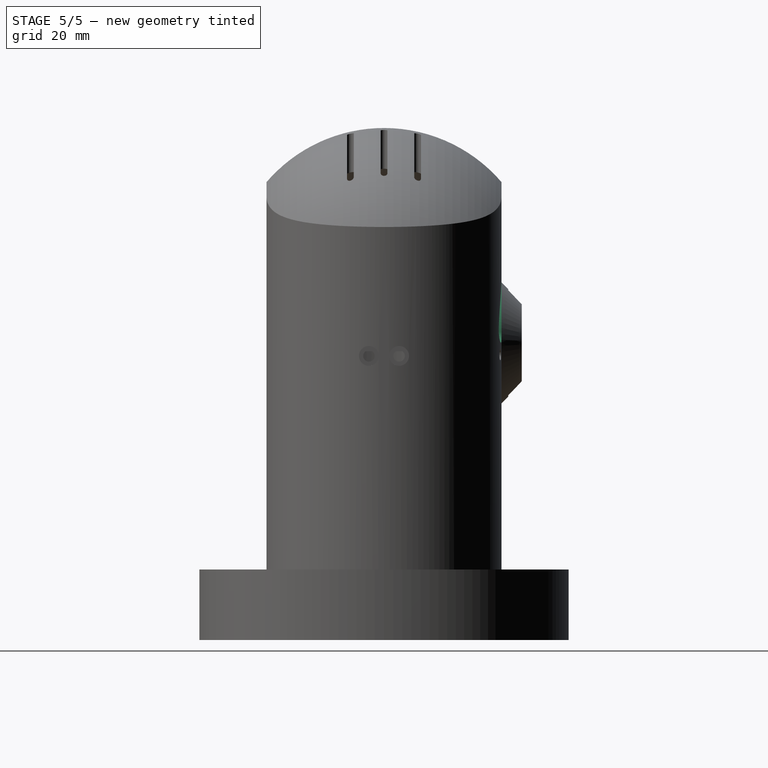
[diagram: stage 5 of 5 — right view after this stage's code; geometry added in this stage tinted green]
FEATURE [Sketcher::SketchObject] Sketch037
  Placement = pos=(0,35,88.5) rot=(1,0,0;1.5708rad)
  sketch-geometry (4):
    g0: ArcOfCircle CenterX=0 CenterY=0 CenterZ=0 NormalX=0 NormalY=0 NormalZ=1 Radius=28 StartAngle=0.167447 EndAngle=2.97414
    g1: ArcOfCircle CenterX=0 CenterY=0 CenterZ=0 NormalX=0 NormalY=0 NormalZ=1 Radius=20 StartAngle=0.167448 EndAngle=2.97414
    g2: ArcOfCircle CenterX=23.6643 CenterY=4 CenterZ=0 NormalX=0 NormalY=0 NormalZ=1 Radius=4 StartAngle=3.30904 EndAngle=6.45063
    g3: ArcOfCircle CenterX=-23.6643 CenterY=4 CenterZ=0 NormalX=0 NormalY=0 NormalZ=1 Radius=4 StartAngle=2.97414 EndAngle=6.11574
  constraints (14):
    c: Coincident(g0,g-1)
    c: Coincident(g1,g-1)
    c: Coincident(g2,g0)
    c: Coincident(g3,g1)
    c: Coincident(g3,g0)
    c: Tangent(g3,g1)
    c: Radius(g1) = 20
    c: Radius(g0) = 28
    c: Tangent(g0,g3)
    c: Tangent(g3,g-1)
    c: Coincident(g2,g1)
    c: Tangent(g2,g1)
    c: Tangent(g2,g-1)
    c: Tangent(g0,g2)
FEATURE [PartDesign::Pad] Pad027
  Length = 20
  Length2 = 100
  Midplane = true
  Placement = pos=(0,35,88.5) rot=(1,0,0;1.5708rad)
  Sketch = -> Sketch037
  Type = 0
FEATURE [Part::FeaturePython] Clone202  label="Clone of M3Bolt064"  # Draft clone (typed FeaturePython)
  Objects = -> [Fusion]
  Placement = pos=(-16,-55.7934,75.5) rot=(0.57735,0.57735,0.57735;4.18879rad)
  Scale = (1,1,1)
FEATURE [Part::FeaturePython] Clone203  label="Clone of M3Bolt065"  # Draft clone (typed FeaturePython)
  Objects = -> [Fusion]
  Placement = pos=(16,-55.7934,75.5) rot=(0.57735,0.57735,0.57735;4.18879rad)
  Scale = (1,1,1)
FEATURE [Part::FeaturePython] Clone204  label="Clone of M3Bolt066"  # Draft clone (typed FeaturePython)
  Objects = -> [Fusion]
  Placement = pos=(0,-55.7934,106.5) rot=(0.57735,0.57735,0.57735;4.18879rad)
  Scale = (1,1,1)
FEATURE [Part::MultiFuse] Fusion130
  Shapes = -> [Cylinder1021,Pad027,Clone202,Clone203,Clone204,Clone205,Clone206,Clone207,Clone208,Clone209,Clone210,Clone211,Clone212,Cylinder1019,Clone356,Clone353,Clone354,Clone355]
FEATURE [Part::Cylinder] Cylinder1061  label="M2BoltHead"
  Angle = 360
  Height = 7
  Radius = 2.1
FEATURE [Part::Cylinder] Cylinder1062  label="M2BoltBody"
  Angle = 360
  Height = 30
  Placement = pos=(0,0,6) rot=(0,0,1;0rad)
  Radius = 1.2
FEATURE [Part::MultiFuse] Fusion158  label="M2Bolt "
  Shapes = -> [Cylinder1062,Cylinder1061]
FEATURE [Sketcher::SketchObject] Sketch079  label="M2NutHousingSketch"
  sketch-geometry (5):
    g0: LineSegment StartX=0 StartY=0 StartZ=0 EndX=1.18357 EndY=2.05 EndZ=0
    g1: LineSegment StartX=1.18357 StartY=2.05 StartZ=0 EndX=21.1836 EndY=2.05 EndZ=0
    g2: LineSegment StartX=21.1836 StartY=2.05 StartZ=0 EndX=21.1836 EndY=-2.05 EndZ=0
    g3: LineSegment StartX=21.1836 StartY=-2.05 StartZ=0 EndX=1.18357 EndY=-2.05 EndZ=0
    g4: LineSegment StartX=1.18357 StartY=-2.05 StartZ=0 EndX=0 EndY=0 EndZ=0
  constraints (14):
    c: Coincident(g-1,g0)
    c: Coincident(g0,g1)
    c: Horizontal(g1)
    c: Coincident(g1,g2)
    c: Vertical(g2)
    c: Coincident(g2,g3)
    c: Horizontal(g3)
    c: Coincident(g3,g4)
    c: Coincident(g4,g0)
    c: Equal(g3,g1)
    c: Equal(g4,g0)
    c: DistanceY(g2) = -4.1
    c: Angle(g-1,g0) = 1.0472
    c: DistanceX(g3) = -20
FEATURE [PartDesign::Pad] Pad048  label="M2NutHousing"
  Length = 1.7
  Length2 = 100
  Sketch = -> Sketch079
  Type = 0
FEATURE [Sketcher::SketchObject] Sketch081
  Placement = pos=(-50,-13.5,64.5) rot=(-1,0,0;1.5708rad)
  sketch-geometry (4):
    g0: LineSegment StartX=0 StartY=0 StartZ=0 EndX=32 EndY=32 EndZ=0
    g1: LineSegment StartX=32 StartY=32 StartZ=0 EndX=32 EndY=34 EndZ=0
    g2: LineSegment StartX=32 StartY=34 StartZ=0 EndX=0 EndY=34 EndZ=0
    g3: LineSegment StartX=0 StartY=34 StartZ=0 EndX=0 EndY=0 EndZ=0
  constraints (11):
    c: Coincident(g0,g1)
    c: Vertical(g1)
    c: Coincident(g1,g2)
    c: Horizontal(g2)
    c: Coincident(g2,g3)
    c: Vertical(g3)
    c: Angle(g-1,g0) = 0.785398
    c: Coincident(g3,g-1)
    c: Coincident(g-1,g0)
    c: DistanceX(g2) = -32
    c: DistanceY(g3) = -34
FEATURE [PartDesign::Pad] Pad049
  Length = 6
  Length2 = 100
  Midplane = true
  Placement = pos=(-50,-13.5,64.5) rot=(-1,0,0;1.5708rad)
  Sketch = -> Sketch081
  Type = 0
FEATURE [Part::FeaturePython] Clone431  label="Clone of M2Bolt 004"  # Draft clone (typed FeaturePython)
  Objects = -> [Fusion158]
  Placement = pos=(-31.7,-13.5,4) rot=(0,0,1;0rad)
  Scale = (1,1,1)
FEATURE [Part::FeaturePython] Clone432  label="Clone of M2Bolt 005"  # Draft clone (typed FeaturePython)
  Objects = -> [Fusion158]
  Placement = pos=(-21.7,-13.5,4) rot=(0,0,1;0rad)
  Scale = (1,1,1)
FEATURE [Part::FeaturePython] Clone433  label="Clone of M2NutHousing002"  # Draft clone (typed FeaturePython)
  Objects = -> [Pad048]
  Placement = pos=(-21.7,-16.2,32) rot=(0,0,1;1.5708rad)
  Scale = (1,1,1)
FEATURE [Part::FeaturePython] Clone434  label="Clone of M2NutHousing003"  # Draft clone (typed FeaturePython)
  Objects = -> [Pad048]
  Placement = pos=(-31.7,-16.2,32) rot=(0,0,1;1.5708rad)
  Scale = (1,1,1)
FEATURE [Part::MultiFuse] Fusion162
  Shapes = -> [Clone431,Clone432,Clone433,Clone434]
FEATURE [Part::Cut] Cut142  label="Cut168"
  Base = -> Pad049
  Tool = -> Fusion162
FEATURE [Part::Cut] Cut145
  Base = -> Fusion170
  Tool = -> Fusion130
FEATURE [Part::MultiFuse] Fusion171
  Shapes = -> [Cut142,Cut145]
FEATURE [Part::Cut] Cut146  label="Art3Body"
  Base = -> Fusion171
  Tool = -> Fusion173
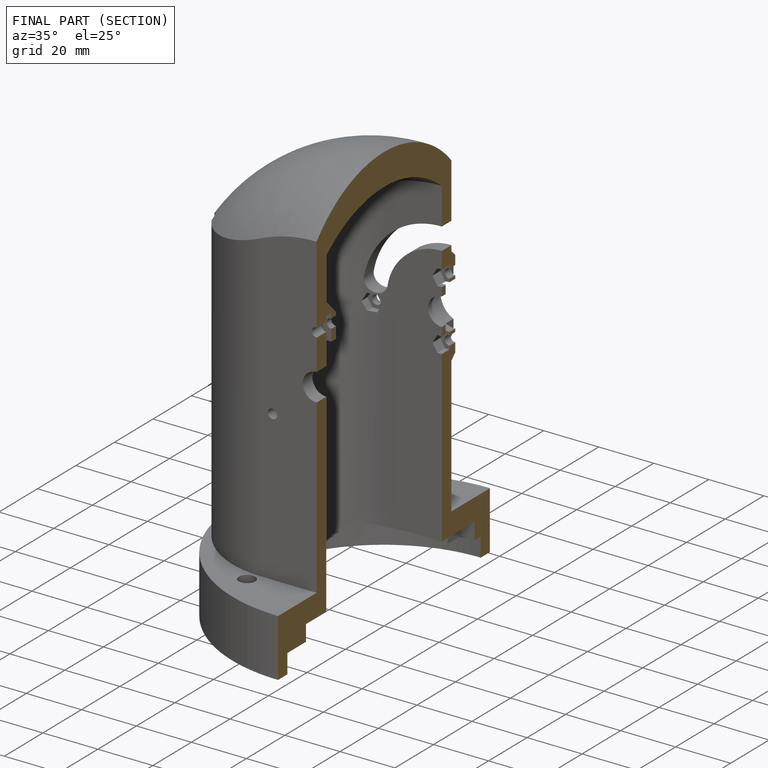
[diagram: finished part — half-section view (interior)]
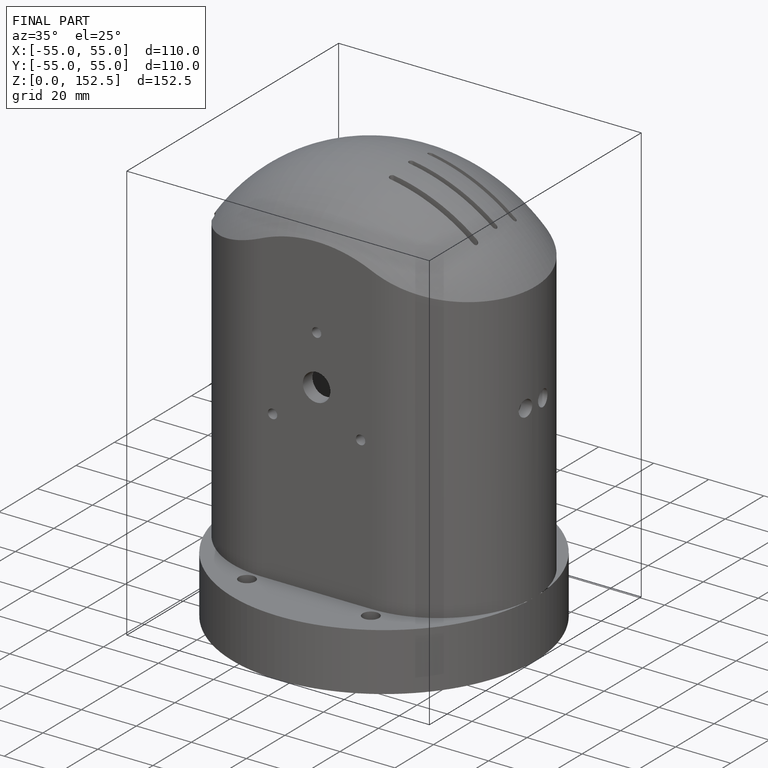
[diagram: finished part — iso view with bounding-box wireframe]
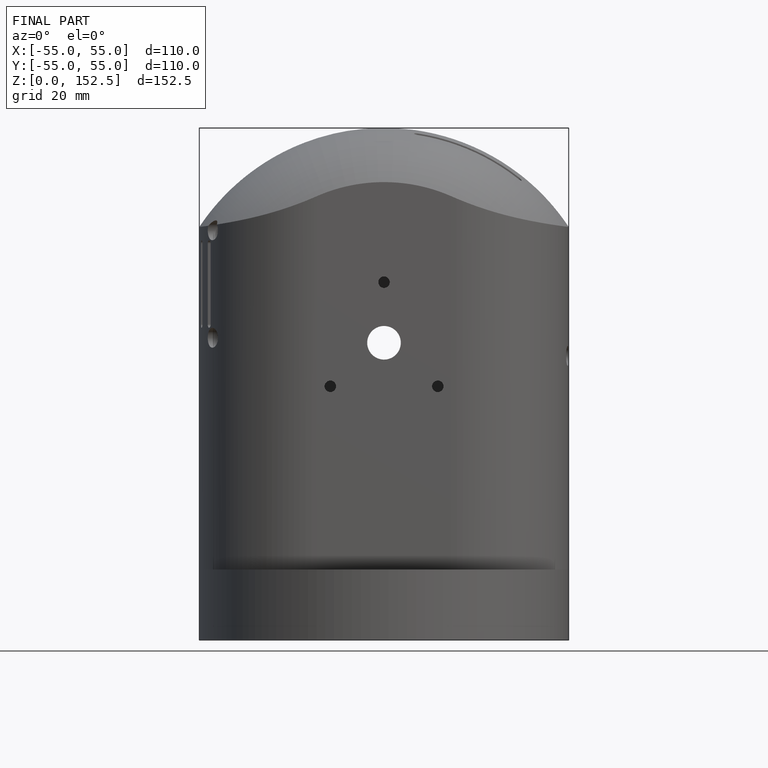
[diagram: finished part — front view with bounding-box wireframe]
